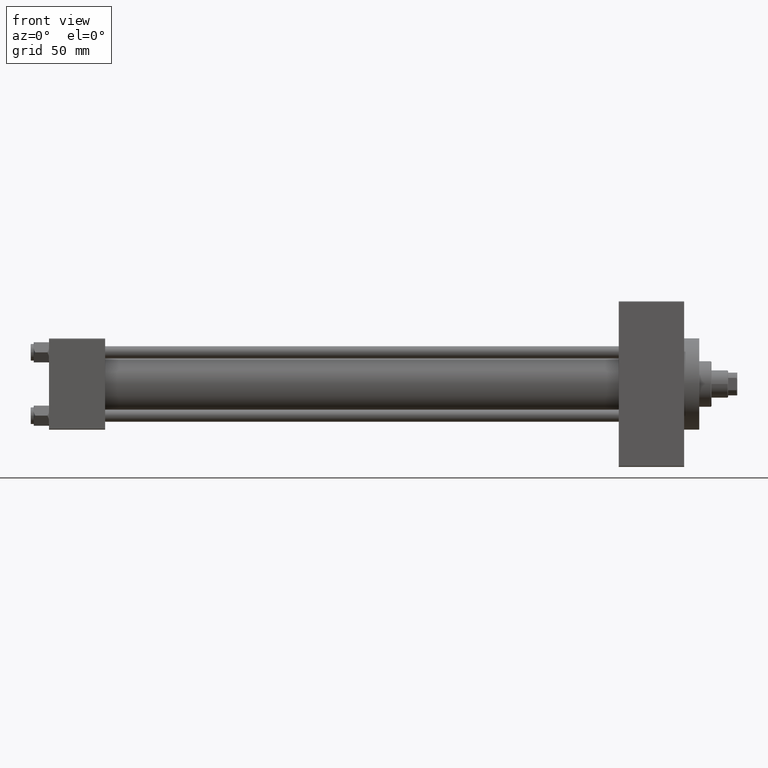
[diagram: clean part render]
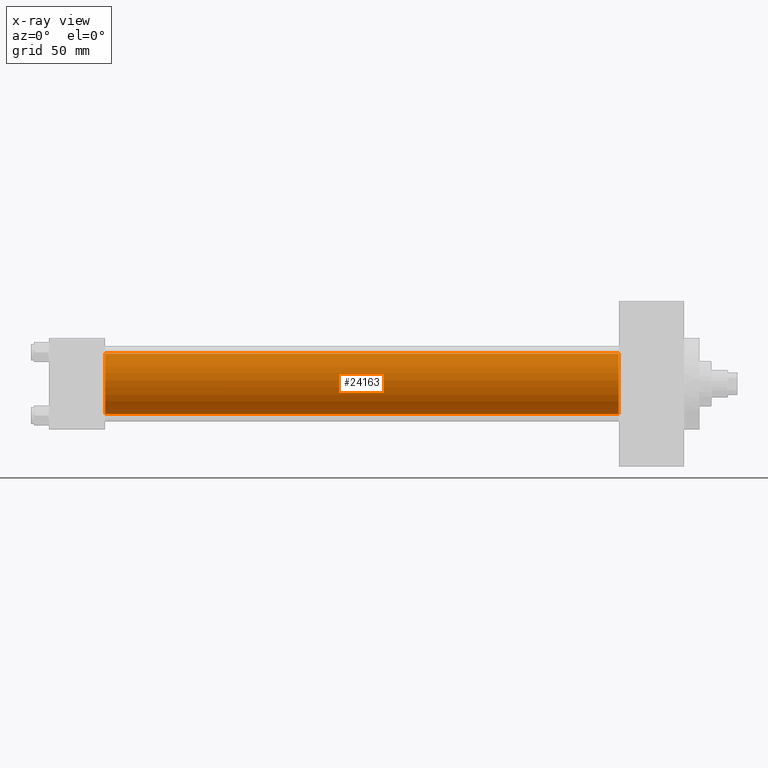
[diagram: x-ray — body ghosted, one internal face saturated and labeled with its STEP entity id]
A machine part, front view, then the same camera in x-ray: the body is ghosted and one INTERNAL B-rep face — a face not visible from any outside direction — is saturated and labeled: STEP entity #24163.
In plain terms, the highlighted cylindrical surface (edge-blend (fillet) strip) has radius 20 mm, axis along (-1, -0, -0).
Its self-contained STEP definition (entity closure, byte-faithful):
#2046 = CIRCLE ( 'NONE', #13544, 20.00000000000000000 ) ;
#2522 = DIRECTION ( 'NONE',  ( -1.000000000000000000, -0.000000000000000000, -0.000000000000000000 ) ) ;
#2716 = CARTESIAN_POINT ( 'NONE',  ( 375.0000000000000000, -2.602085213965210642E-15, 20.00000000000000000 ) ) ;
#4504 = VECTOR ( 'NONE', #2522, 1000.000000000000000 ) ;
#5943 = VERTEX_POINT ( 'NONE', #33194 ) ;
#6811 = CARTESIAN_POINT ( 'NONE',  ( 37.00000000000000000, -2.602085213965210642E-15, 20.00000000000000000 ) ) ;
#7251 = FACE_OUTER_BOUND ( 'NONE', #21220, .T. ) ;
#7498 = CARTESIAN_POINT ( 'NONE',  ( 375.0000000000000000, -2.602085213965210642E-15, 0.000000000000000000 ) ) ;
#7727 = ORIENTED_EDGE ( 'NONE', *, *, #16978, .F. ) ;
#10396 = LINE ( 'NONE', #2716, #22215 ) ;
#10566 = CARTESIAN_POINT ( 'NONE',  ( 375.0000000000000000, -2.602085213965210642E-15, 20.00000000000000000 ) ) ;
#11079 = DIRECTION ( 'NONE',  ( -1.000000000000000000, -0.000000000000000000, -0.000000000000000000 ) ) ;
#13544 = AXIS2_PLACEMENT_3D ( 'NONE', #17815, #39881, #38940 ) ;
#14146 = CARTESIAN_POINT ( 'NONE',  ( 375.0000000000000000, -1.527916156705042519E-16, -20.00000000000000000 ) ) ;
#14536 = EDGE_CURVE ( 'NONE', #27247, #5943, #39212, .T. ) ;
#16978 = EDGE_CURVE ( 'NONE', #42094, #5943, #20670, .T. ) ;
#17357 = DIRECTION ( 'NONE',  ( -1.000000000000000000, -0.000000000000000000, -0.000000000000000000 ) ) ;
#17815 = CARTESIAN_POINT ( 'NONE',  ( 375.0000000000000000, -2.602085213965210642E-15, 0.000000000000000000 ) ) ;
#19107 = AXIS2_PLACEMENT_3D ( 'NONE', #30959, #41531, #45611 ) ;
#20670 = CIRCLE ( 'NONE', #19107, 20.00000000000000000 ) ;
#21220 = EDGE_LOOP ( 'NONE', ( #27697, #41149, #7727, #27473 ) ) ;
#21861 = CYLINDRICAL_SURFACE ( 'NONE', #37850, 20.00000000000000000 ) ;
#22215 = VECTOR ( 'NONE', #17357, 1000.000000000000000 ) ;
#24163 = ADVANCED_FACE ( 'NONE', ( #7251 ), #21861, .F. ) ;
#24474 = VERTEX_POINT ( 'NONE', #10566 ) ;
#27247 = VERTEX_POINT ( 'NONE', #14146 ) ;
#27473 = ORIENTED_EDGE ( 'NONE', *, *, #42120, .F. ) ;
#27697 = ORIENTED_EDGE ( 'NONE', *, *, #32592, .T. ) ;
#30959 = CARTESIAN_POINT ( 'NONE',  ( 37.00000000000000000, -2.602085213965210642E-15, 0.000000000000000000 ) ) ;
#32592 = EDGE_CURVE ( 'NONE', #24474, #27247, #2046, .T. ) ;
#32903 = DIRECTION ( 'NONE',  ( 0.000000000000000000, 0.000000000000000000, 1.000000000000000000 ) ) ;
#33194 = CARTESIAN_POINT ( 'NONE',  ( 37.00000000000000000, -1.527916156705042519E-16, -20.00000000000000000 ) ) ;
#37850 = AXIS2_PLACEMENT_3D ( 'NONE', #7498, #11079, #32903 ) ;
#38940 = DIRECTION ( 'NONE',  ( 0.000000000000000000, 0.000000000000000000, -1.000000000000000000 ) ) ;
#39212 = LINE ( 'NONE', #46890, #4504 ) ;
#39881 = DIRECTION ( 'NONE',  ( 1.000000000000000000, 0.000000000000000000, 0.000000000000000000 ) ) ;
#41149 = ORIENTED_EDGE ( 'NONE', *, *, #14536, .T. ) ;
#41531 = DIRECTION ( 'NONE',  ( 1.000000000000000000, 0.000000000000000000, 0.000000000000000000 ) ) ;
#42094 = VERTEX_POINT ( 'NONE', #6811 ) ;
#42120 = EDGE_CURVE ( 'NONE', #24474, #42094, #10396, .T. ) ;
#45611 = DIRECTION ( 'NONE',  ( 0.000000000000000000, 0.000000000000000000, -1.000000000000000000 ) ) ;
#46890 = CARTESIAN_POINT ( 'NONE',  ( 375.0000000000000000, -1.527916156705042519E-16, -20.00000000000000000 ) ) ;